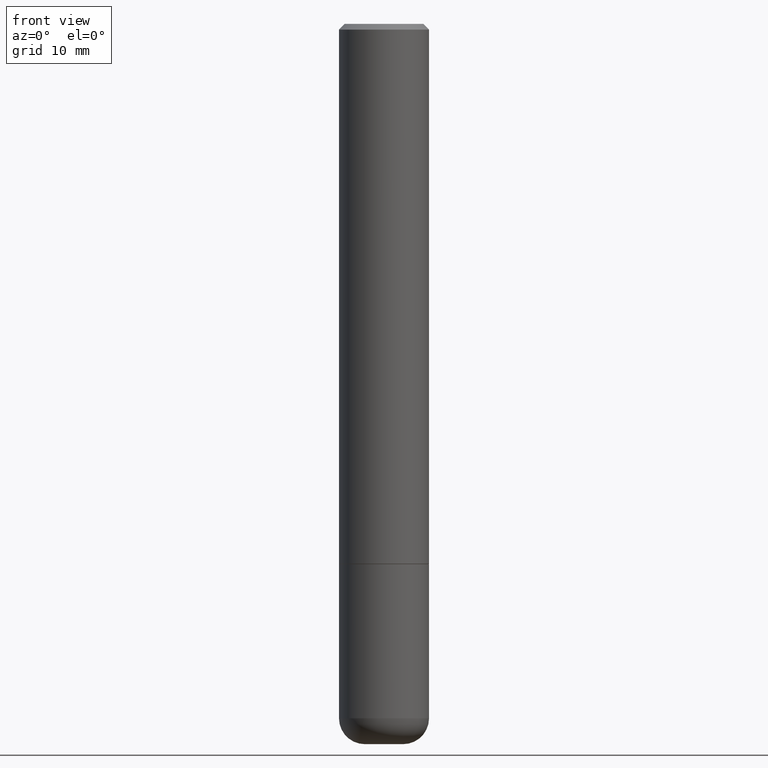
[diagram: clean part render]
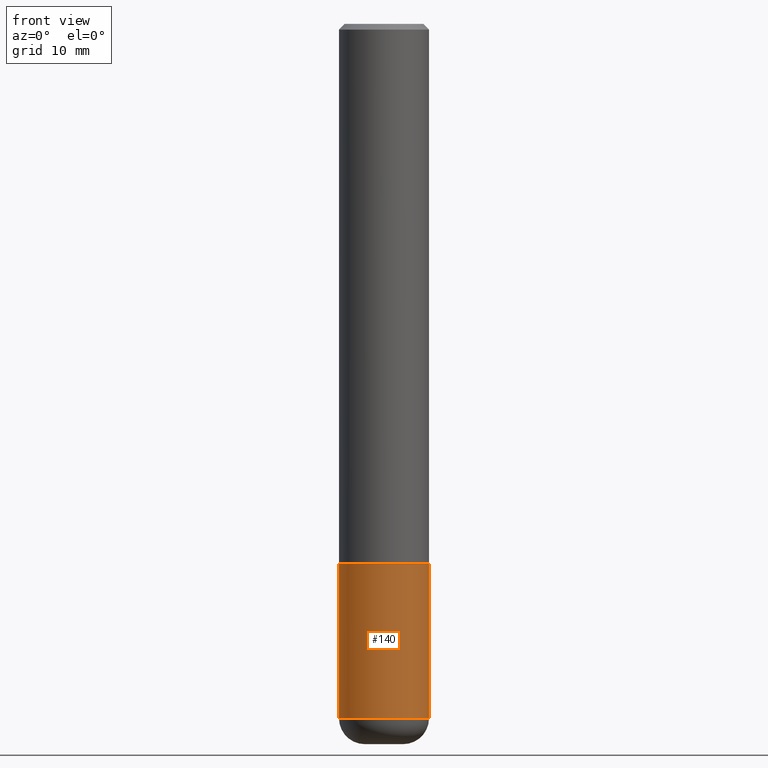
[diagram: same view with one face highlighted and labeled with its STEP entity id]
A machine part, front view. The second image highlights one B-rep face of the part: STEP entity #140.
In plain terms, the highlighted cylindrical surface (partial cylindrical patch) has radius 3.9688 mm, axis along (-0, 0, 1).
Its self-contained STEP definition (entity closure, byte-faithful):
#2 = DIRECTION ( 'NONE',  ( 1.000000000000000000, -6.982962677686266711E-15, 4.876176775795936353E-29 ) ) ;
#12 = CARTESIAN_POINT ( 'NONE',  ( 0.1562500000000000000, -7.637615428719378669E-15, -1.875000000000000000 ) ) ;
#14 = LINE ( 'NONE', #302, #39 ) ;
#29 = CARTESIAN_POINT ( 'NONE',  ( 0.000000000000000000, 0.000000000000000000, 0.000000000000000000 ) ) ;
#39 = VECTOR ( 'NONE', #101, 39.37007874015748143 ) ;
#64 = AXIS2_PLACEMENT_3D ( 'NONE', #365, #130, #263 ) ;
#96 = ORIENTED_EDGE ( 'NONE', *, *, #231, .T. ) ;
#101 = DIRECTION ( 'NONE',  ( -2.445468806185136877E-29, 3.491481338843145188E-15, 1.000000000000000000 ) ) ;
#111 = ORIENTED_EDGE ( 'NONE', *, *, #326, .F. ) ;
#118 = VERTEX_POINT ( 'NONE', #242 ) ;
#119 = ORIENTED_EDGE ( 'NONE', *, *, #170, .F. ) ;
#123 = VERTEX_POINT ( 'NONE', #382 ) ;
#124 = AXIS2_PLACEMENT_3D ( 'NONE', #29, #156, #2 ) ;
#127 = EDGE_LOOP ( 'NONE', ( #119, #208, #96, #111 ) ) ;
#130 = DIRECTION ( 'NONE',  ( -2.445468806185136597E-29, 3.491481338843145583E-15, 1.000000000000000000 ) ) ;
#140 = ADVANCED_FACE ( 'NONE', ( #320 ), #390, .T. ) ;
#152 = DIRECTION ( 'NONE',  ( 1.000000000000000000, -6.982962677686269077E-15, 0.000000000000000000 ) ) ;
#156 = DIRECTION ( 'NONE',  ( -2.445468806185136597E-29, 3.491481338843145583E-15, 1.000000000000000000 ) ) ;
#170 = EDGE_CURVE ( 'NONE', #410, #123, #359, .T. ) ;
#191 = DIRECTION ( 'NONE',  ( -2.445468806185136877E-29, 3.491481338843145188E-15, 1.000000000000000000 ) ) ;
#192 = VECTOR ( 'NONE', #191, 39.37007874015748143 ) ;
#208 = ORIENTED_EDGE ( 'NONE', *, *, #404, .T. ) ;
#219 = CIRCLE ( 'NONE', #223, 0.1562500000000000000 ) ;
#223 = AXIS2_PLACEMENT_3D ( 'NONE', #269, #314, #152 ) ;
#231 = EDGE_CURVE ( 'NONE', #118, #276, #14, .T. ) ;
#242 = CARTESIAN_POINT ( 'NONE',  ( 0.1562499999999999722, -9.505557945000458485E-15, -2.410000000000000142 ) ) ;
#249 = CARTESIAN_POINT ( 'NONE',  ( -0.1562500000000000000, 1.110223024625156540E-15, -7.685836078523291160E-30 ) ) ;
#263 = DIRECTION ( 'NONE',  ( 1.000000000000000000, -6.982962677686262766E-15, 0.000000000000000000 ) ) ;
#269 = CARTESIAN_POINT ( 'NONE',  ( 4.585254011597131119E-29, -6.546527510330898707E-15, -1.875000000000000000 ) ) ;
#276 = VERTEX_POINT ( 'NONE', #12 ) ;
#302 = CARTESIAN_POINT ( 'NONE',  ( 0.1562500000000000000, -1.091087918388479174E-15, 7.619026212181150377E-30 ) ) ;
#304 = CARTESIAN_POINT ( 'NONE',  ( -0.1562499999999999722, -7.304247001986825138E-15, -2.410000000000000142 ) ) ;
#313 = CIRCLE ( 'NONE', #64, 0.1562500000000000000 ) ;
#314 = DIRECTION ( 'NONE',  ( -2.445468806185136597E-29, 3.491481338843145583E-15, 1.000000000000000000 ) ) ;
#320 = FACE_OUTER_BOUND ( 'NONE', #127, .T. ) ;
#326 = EDGE_CURVE ( 'NONE', #123, #276, #219, .T. ) ;
#359 = LINE ( 'NONE', #249, #192 ) ;
#365 = CARTESIAN_POINT ( 'NONE',  ( 5.893579822906179826E-29, -8.414470026611981678E-15, -2.410000000000000142 ) ) ;
#382 = CARTESIAN_POINT ( 'NONE',  ( -0.1562500000000000000, -6.370275743846283652E-15, -1.875000000000000000 ) ) ;
#390 = CYLINDRICAL_SURFACE ( 'NONE', #124, 0.1562500000000000000 ) ;
#404 = EDGE_CURVE ( 'NONE', #410, #118, #313, .T. ) ;
#410 = VERTEX_POINT ( 'NONE', #304 ) ;